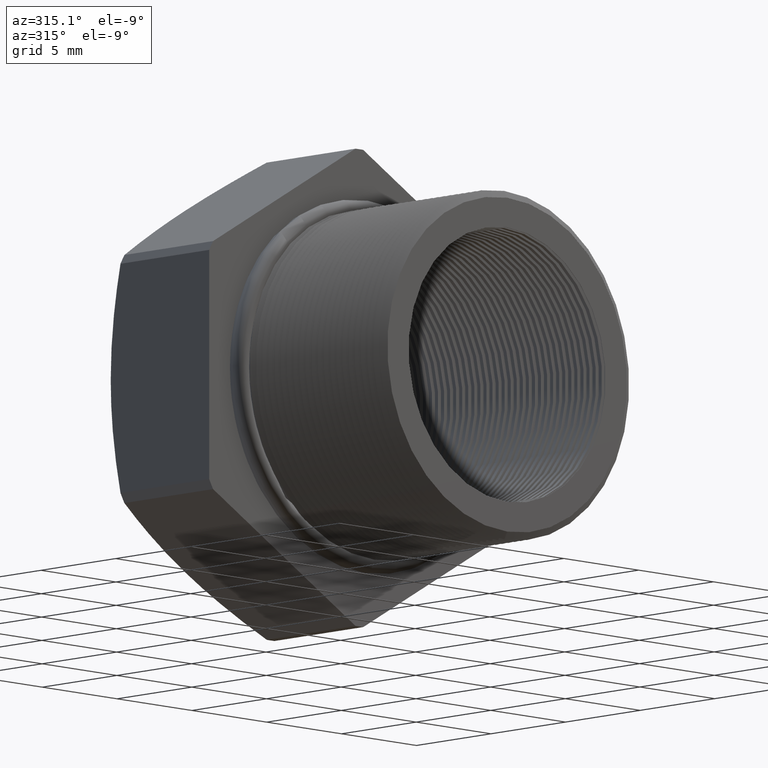
[diagram: clean part render]
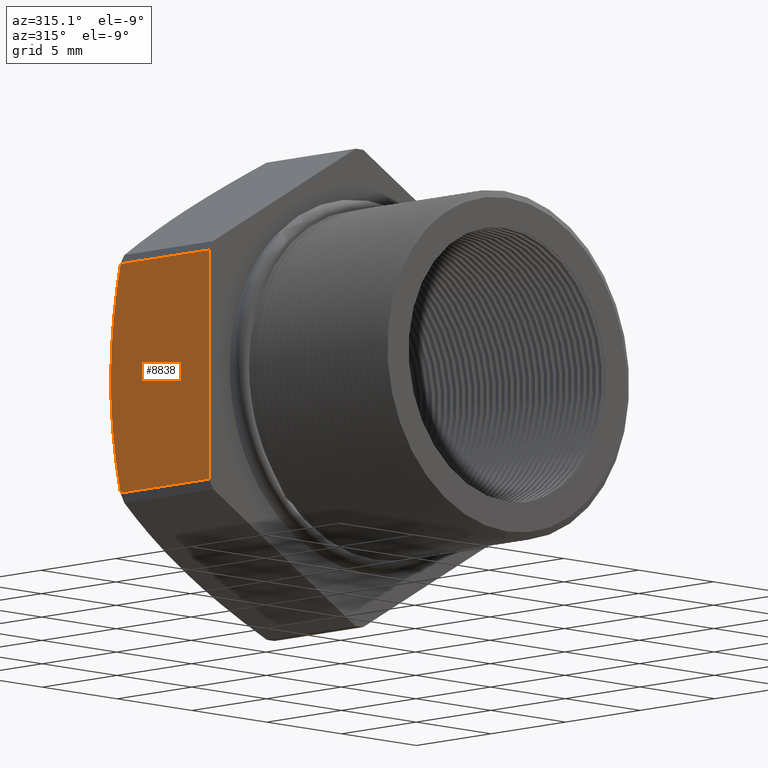
[diagram: same view with one face highlighted and labeled with its STEP entity id]
A machine part, auxiliary view. The second image highlights one B-rep face of the part: STEP entity #8838.
In plain terms, the highlighted planar face has unit normal (-1, 0, 0).
Its self-contained STEP definition (entity closure, byte-faithful):
#5307 = CARTESIAN_POINT ( 'NONE',  ( -0.3949999999999999600, 0.4075548905829479200, 0.0000000000000000000 ) ) ;
#5419 = CARTESIAN_POINT ( 'NONE',  ( -0.3949999999999999600, 0.1475548905829479600, -0.2162061284977833100 ) ) ;
#5538 = CARTESIAN_POINT ( 'NONE',  ( -0.3949999999999999600, 0.3817680770869766300, -0.2162061284977833100 ) ) ;
#5539 = DIRECTION ( 'NONE',  ( 0.0000000000000000000, 1.000000000000000000, 0.0000000000000000000 ) ) ;
#5540 = VECTOR ( 'NONE', #5539, 39.37007874015748100 ) ;
#5541 = CARTESIAN_POINT ( 'NONE',  ( -0.3949999999999999600, 0.0000000000000000000, -0.2162061284977833100 ) ) ;
#5542 = LINE ( 'NONE', #5541, #5540 ) ;
#5568 = CARTESIAN_POINT ( 'NONE',  ( -0.3949999999999999600, 0.1475548905829479600, 0.2162061284977833100 ) ) ;
#5621 = CARTESIAN_POINT ( 'NONE',  ( -0.3949999999999999600, 0.3817680770869766300, 0.2162061284977833100 ) ) ;
#5622 = DIRECTION ( 'NONE',  ( -0.0000000000000000000, -1.000000000000000000, -0.0000000000000000000 ) ) ;
#5623 = VECTOR ( 'NONE', #5622, 39.37007874015748100 ) ;
#5624 = CARTESIAN_POINT ( 'NONE',  ( -0.3949999999999999600, 0.0000000000000000000, 0.2162061284977833100 ) ) ;
#5625 = LINE ( 'NONE', #5624, #5623 ) ;
#5787 = CARTESIAN_POINT ( 'NONE',  ( -0.3949999999999999600, 0.3817680770869766300, 0.2162061284977833100 ) ) ;
#5788 = B_SPLINE_CURVE_WITH_KNOTS ( 'NONE', 3,
 ( #5838, #5837, #5836, #5835, #5834, #5833 ),
 .UNSPECIFIED., .F., .F.,
 ( 4, 2, 4 ),
 ( 0.02900509596323218000, 0.03174678321578506400, 0.03448847046833794500 ),
 .UNSPECIFIED. ) ;
#5789 = B_SPLINE_CURVE_WITH_KNOTS ( 'NONE', 3,
 ( #5787, #5847, #5846, #5845, #5844, #5843, #5842, #5841 ),
 .UNSPECIFIED., .F., .F.,
 ( 4, 2, 2, 4 ),
 ( 0.02352565897923655800, 0.02489551822523546400, 0.02626537747123437000, 0.02900509596323218000 ),
 .UNSPECIFIED. ) ;
#5790 = DIRECTION ( 'NONE',  ( 0.0000000000000000000, 0.0000000000000000000, -1.000000000000000000 ) ) ;
#5791 = VECTOR ( 'NONE', #5790, 39.37007874015748100 ) ;
#5792 = CARTESIAN_POINT ( 'NONE',  ( -0.3949999999999999600, 0.1475548905829479600, 0.0000000000000000000 ) ) ;
#5793 = LINE ( 'NONE', #5792, #5791 ) ;
#5818 = DIRECTION ( 'NONE',  ( 0.0000000000000000000, 0.0000000000000000000, 1.000000000000000000 ) ) ;
#5819 = DIRECTION ( 'NONE',  ( -1.000000000000000000, 0.0000000000000000000, 0.0000000000000000000 ) ) ;
#5820 = AXIS2_PLACEMENT_3D ( 'NONE', #5822, #5819, #5818 ) ;
#5822 = CARTESIAN_POINT ( 'NONE',  ( -0.3949999999999999600, 0.4075548905829479700, 0.2280533563299023400 ) ) ;
#5823 = PLANE ( 'NONE',  #5820 ) ;
#5824 = FACE_OUTER_BOUND ( 'NONE', #8839, .T. ) ;
#5833 = CARTESIAN_POINT ( 'NONE',  ( -0.3949999999999999600, 0.3817680770869766300, -0.2162061284977833100 ) ) ;
#5834 = CARTESIAN_POINT ( 'NONE',  ( -0.3950000000000000200, 0.3897436049692260500, -0.1805839203849788400 ) ) ;
#5835 = CARTESIAN_POINT ( 'NONE',  ( -0.3949999999999999100, 0.3963026295804197900, -0.1444149386209685500 ) ) ;
#5836 = CARTESIAN_POINT ( 'NONE',  ( -0.3949999999999999600, 0.4052015678598631100, -0.07226777217275479100 ) ) ;
#5837 = CARTESIAN_POINT ( 'NONE',  ( -0.3949999999999999600, 0.4075548905829479700, -0.03615556656773565000 ) ) ;
#5838 = CARTESIAN_POINT ( 'NONE',  ( -0.3949999999999999600, 0.4075548905829479200, 0.0000000000000000000 ) ) ;
#5841 = CARTESIAN_POINT ( 'NONE',  ( -0.3949999999999999600, 0.4075548905829479200, 0.0000000000000000000 ) ) ;
#5842 = CARTESIAN_POINT ( 'NONE',  ( -0.3949999999999999600, 0.4075548905829479200, 0.03612960384961803900 ) ) ;
#5843 = CARTESIAN_POINT ( 'NONE',  ( -0.3949999999999999600, 0.4052039048660248700, 0.07230252560162939200 ) ) ;
#5844 = CARTESIAN_POINT ( 'NONE',  ( -0.3950000000000000200, 0.3984941280353006500, 0.1266205618412448400 ) ) ;
#5845 = CARTESIAN_POINT ( 'NONE',  ( -0.3949999999999999100, 0.3957247617337310000, 0.1447813574702673800 ) ) ;
#5846 = CARTESIAN_POINT ( 'NONE',  ( -0.3949999999999999600, 0.3893425190302214900, 0.1807096371991025500 ) ) ;
#5847 = CARTESIAN_POINT ( 'NONE',  ( -0.3949999999999999600, 0.3857277810940457600, 0.1985203524228407200 ) ) ;
#8586 = VERTEX_POINT ( 'NONE', #5307 ) ;
#8646 = VERTEX_POINT ( 'NONE', #5419 ) ;
#8719 = EDGE_CURVE ( 'NONE', #8646, #8721, #5542, .T. ) ;
#8721 = VERTEX_POINT ( 'NONE', #5538 ) ;
#8742 = VERTEX_POINT ( 'NONE', #5568 ) ;
#8745 = EDGE_CURVE ( 'NONE', #8748, #8742, #5625, .T. ) ;
#8748 = VERTEX_POINT ( 'NONE', #5621 ) ;
#8828 = EDGE_CURVE ( 'NONE', #8742, #8646, #5793, .T. ) ;
#8829 = ORIENTED_EDGE ( 'NONE', *, *, #8719, .F. ) ;
#8830 = ORIENTED_EDGE ( 'NONE', *, *, #8828, .F. ) ;
#8832 = EDGE_CURVE ( 'NONE', #8748, #8586, #5789, .T. ) ;
#8833 = EDGE_CURVE ( 'NONE', #8586, #8721, #5788, .T. ) ;
#8835 = ORIENTED_EDGE ( 'NONE', *, *, #8833, .T. ) ;
#8838 = ADVANCED_FACE ( 'NONE', ( #5824 ), #5823, .T. ) ;
#8839 = EDGE_LOOP ( 'NONE', ( #8843, #8845, #8835, #8829, #8830 ) ) ;
#8843 = ORIENTED_EDGE ( 'NONE', *, *, #8745, .F. ) ;
#8845 = ORIENTED_EDGE ( 'NONE', *, *, #8832, .T. ) ;